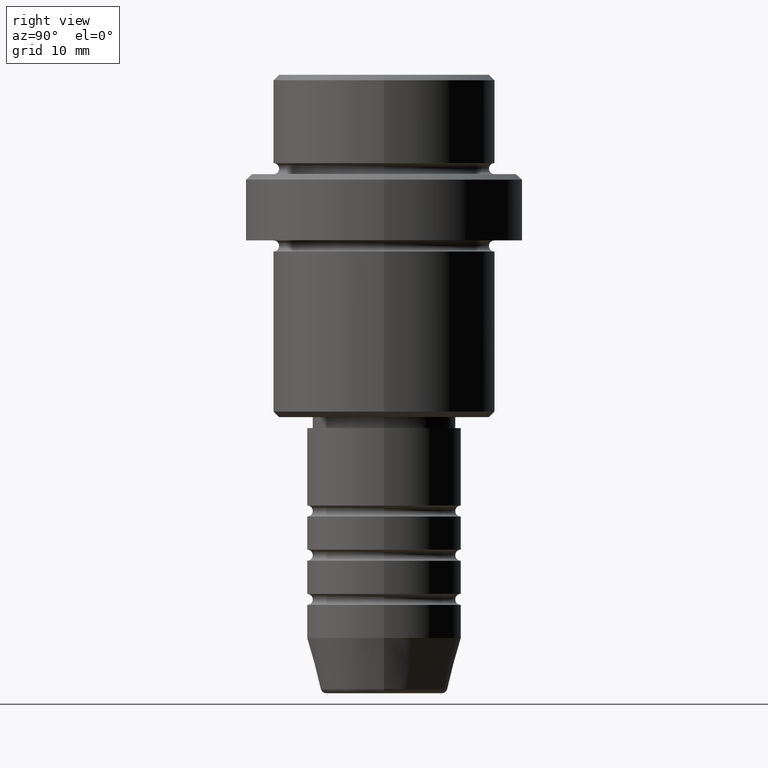
[diagram: clean part render]
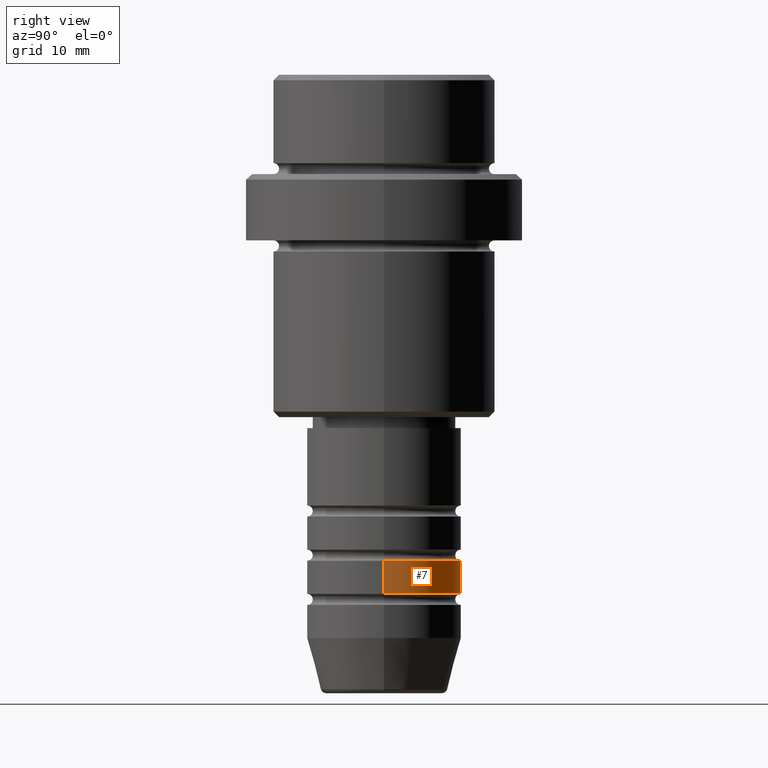
[diagram: same view with one face highlighted and labeled with its STEP entity id]
A machine part, right view. The second image highlights one B-rep face of the part: STEP entity #7.
In plain terms, the highlighted cylindrical surface (partial cylindrical patch) has radius 7 mm, axis along (-0, -0, 1).
Its self-contained STEP definition (entity closure, byte-faithful):
#7 = ADVANCED_FACE ( 'NONE', ( #172 ), #383, .T. ) ;
#37 = EDGE_CURVE ( 'NONE', #472, #746, #831, .T. ) ;
#47 = CARTESIAN_POINT ( 'NONE',  ( -7.000000000000000000, 8.572527594031473190E-16, -43.99999999999988631 ) ) ;
#93 = DIRECTION ( 'NONE',  ( 1.000000000000000000, 0.000000000000000000, 0.000000000000000000 ) ) ;
#133 = ORIENTED_EDGE ( 'NONE', *, *, #205, .T. ) ;
#167 = DIRECTION ( 'NONE',  ( 1.000000000000000000, 0.000000000000000000, 0.000000000000000000 ) ) ;
#170 = CARTESIAN_POINT ( 'NONE',  ( -7.000000000000000000, 8.572527594031473190E-16, 0.000000000000000000 ) ) ;
#172 = FACE_OUTER_BOUND ( 'NONE', #668, .T. ) ;
#179 = DIRECTION ( 'NONE',  ( -0.000000000000000000, -0.000000000000000000, 1.000000000000000000 ) ) ;
#205 = EDGE_CURVE ( 'NONE', #472, #909, #926, .T. ) ;
#233 = DIRECTION ( 'NONE',  ( -0.000000000000000000, -0.000000000000000000, 1.000000000000000000 ) ) ;
#325 = CARTESIAN_POINT ( 'NONE',  ( 0.000000000000000000, 0.000000000000000000, -46.99999999999987921 ) ) ;
#350 = VERTEX_POINT ( 'NONE', #47 ) ;
#363 = VECTOR ( 'NONE', #842, 1000.000000000000000 ) ;
#375 = CARTESIAN_POINT ( 'NONE',  ( -7.000000000000000000, 8.572527594031473190E-16, -46.99999999999987921 ) ) ;
#383 = CYLINDRICAL_SURFACE ( 'NONE', #662, 7.000000000000000000 ) ;
#395 = DIRECTION ( 'NONE',  ( 1.000000000000000000, 0.000000000000000000, 0.000000000000000000 ) ) ;
#405 = CARTESIAN_POINT ( 'NONE',  ( 0.000000000000000000, 0.000000000000000000, -43.99999999999988631 ) ) ;
#472 = VERTEX_POINT ( 'NONE', #1372 ) ;
#549 = EDGE_CURVE ( 'NONE', #909, #350, #1264, .T. ) ;
#571 = ORIENTED_EDGE ( 'NONE', *, *, #37, .F. ) ;
#662 = AXIS2_PLACEMENT_3D ( 'NONE', #933, #1389, #395 ) ;
#668 = EDGE_LOOP ( 'NONE', ( #133, #914, #920, #571 ) ) ;
#738 = CIRCLE ( 'NONE', #1084, 7.000000000000000000 ) ;
#746 = VERTEX_POINT ( 'NONE', #1028 ) ;
#816 = DIRECTION ( 'NONE',  ( -0.000000000000000000, -0.000000000000000000, 1.000000000000000000 ) ) ;
#831 = LINE ( 'NONE', #1280, #1271 ) ;
#842 = DIRECTION ( 'NONE',  ( -0.000000000000000000, -0.000000000000000000, 1.000000000000000000 ) ) ;
#909 = VERTEX_POINT ( 'NONE', #375 ) ;
#914 = ORIENTED_EDGE ( 'NONE', *, *, #549, .T. ) ;
#920 = ORIENTED_EDGE ( 'NONE', *, *, #1375, .F. ) ;
#926 = CIRCLE ( 'NONE', #1285, 7.000000000000000000 ) ;
#933 = CARTESIAN_POINT ( 'NONE',  ( 0.000000000000000000, 0.000000000000000000, 0.000000000000000000 ) ) ;
#1028 = CARTESIAN_POINT ( 'NONE',  ( 7.000000000000000000, 0.000000000000000000, -43.99999999999988631 ) ) ;
#1084 = AXIS2_PLACEMENT_3D ( 'NONE', #405, #179, #167 ) ;
#1264 = LINE ( 'NONE', #170, #363 ) ;
#1271 = VECTOR ( 'NONE', #816, 1000.000000000000000 ) ;
#1280 = CARTESIAN_POINT ( 'NONE',  ( 7.000000000000000000, 0.000000000000000000, 0.000000000000000000 ) ) ;
#1285 = AXIS2_PLACEMENT_3D ( 'NONE', #325, #233, #93 ) ;
#1372 = CARTESIAN_POINT ( 'NONE',  ( 7.000000000000000000, 0.000000000000000000, -46.99999999999987921 ) ) ;
#1375 = EDGE_CURVE ( 'NONE', #746, #350, #738, .T. ) ;
#1389 = DIRECTION ( 'NONE',  ( -0.000000000000000000, -0.000000000000000000, 1.000000000000000000 ) ) ;